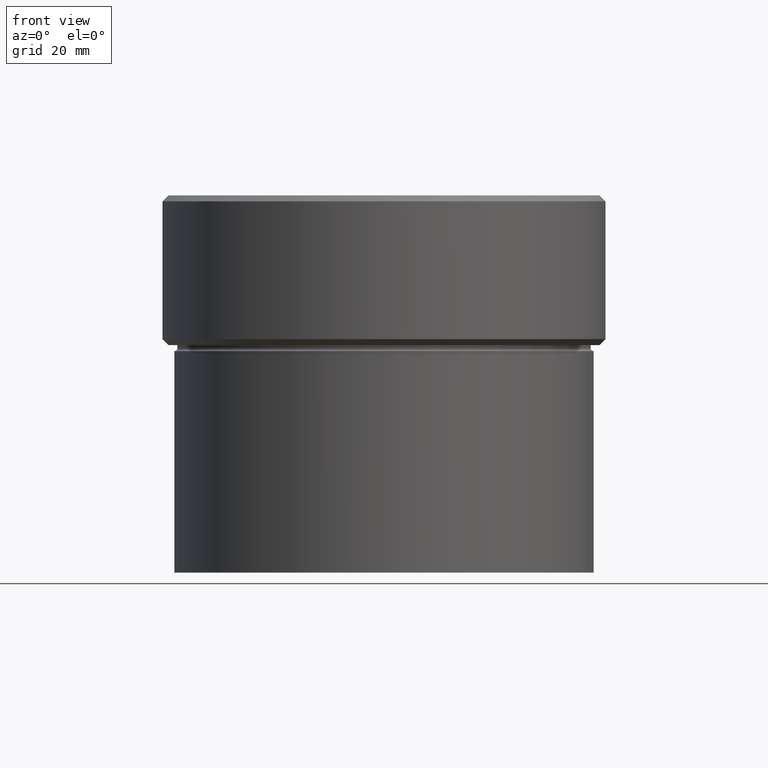
[diagram: clean part render]
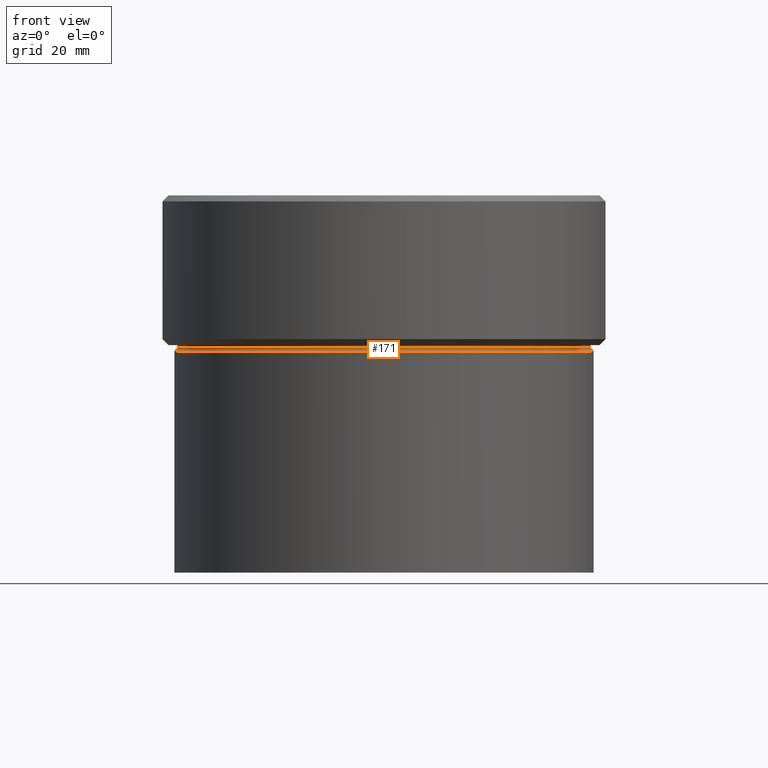
[diagram: same view with one face highlighted and labeled with its STEP entity id]
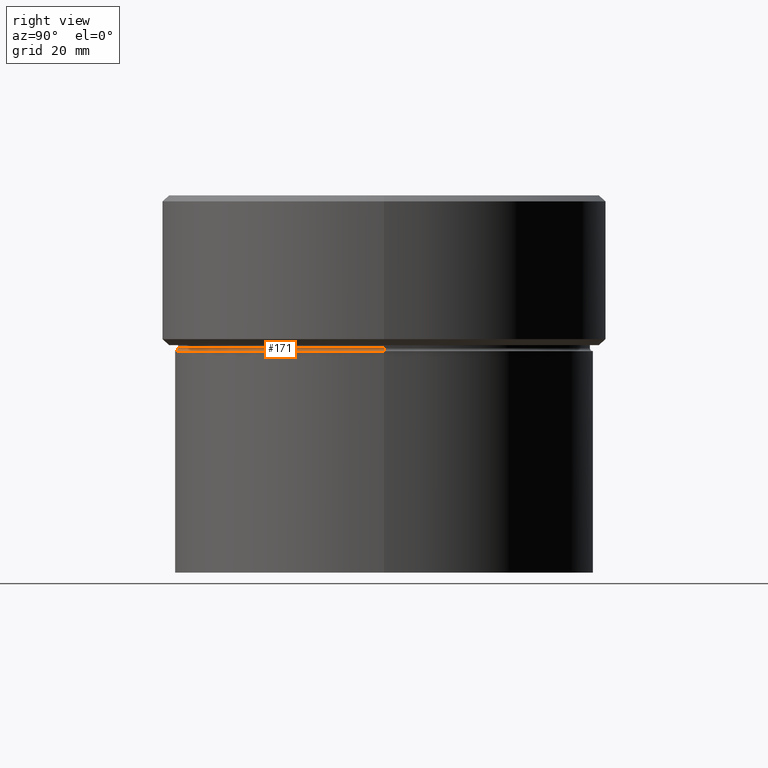
[diagram: same view with one face highlighted and labeled with its STEP entity id]
A machine part, front view. The second image highlights one B-rep face of the part: STEP entity #171.
A second angle (right view) of the same face is appended — the face is thin or edge-on in the first view.
In plain terms, the highlighted toroidal blend (fillet) surface has major radius 35 mm and minor (blend) radius 0.5 mm.
Its self-contained STEP definition (entity closure, byte-faithful):
#30 = AXIS2_PLACEMENT_3D ( 'NONE', #474, #237, #200 ) ;
#37 = CARTESIAN_POINT ( 'NONE',  ( 35.00000000000000000, 0.000000000000000000, -26.00000000000000000 ) ) ;
#75 = ORIENTED_EDGE ( 'NONE', *, *, #507, .T. ) ;
#77 = DIRECTION ( 'NONE',  ( 1.000000000000000000, 0.000000000000000000, 0.000000000000000000 ) ) ;
#81 = EDGE_CURVE ( 'NONE', #366, #393, #170, .T. ) ;
#121 = AXIS2_PLACEMENT_3D ( 'NONE', #448, #203, #77 ) ;
#133 = DIRECTION ( 'NONE',  ( -0.000000000000000000, -0.000000000000000000, 1.000000000000000000 ) ) ;
#136 = VERTEX_POINT ( 'NONE', #37 ) ;
#138 = DIRECTION ( 'NONE',  ( -0.000000000000000000, -0.000000000000000000, 1.000000000000000000 ) ) ;
#145 = VERTEX_POINT ( 'NONE', #524 ) ;
#162 = FACE_OUTER_BOUND ( 'NONE', #369, .T. ) ;
#170 = CIRCLE ( 'NONE', #30, 0.5000000000000004441 ) ;
#171 = ADVANCED_FACE ( 'NONE', ( #162 ), #364, .F. ) ;
#200 = DIRECTION ( 'NONE',  ( -1.000000000000000000, 1.224646799147349509E-16, 0.000000000000000000 ) ) ;
#203 = DIRECTION ( 'NONE',  ( -0.000000000000000000, -0.000000000000000000, 1.000000000000000000 ) ) ;
#216 = CIRCLE ( 'NONE', #514, 0.5000000000000004441 ) ;
#222 = ORIENTED_EDGE ( 'NONE', *, *, #302, .F. ) ;
#223 = CIRCLE ( 'NONE', #410, 34.50000000000000000 ) ;
#237 = DIRECTION ( 'NONE',  ( 1.224646799147353207E-16, 1.000000000000000000, 0.000000000000000000 ) ) ;
#270 = CARTESIAN_POINT ( 'NONE',  ( -34.50000000000000000, 4.225031457058368922E-15, -25.50000000000000000 ) ) ;
#294 = DIRECTION ( 'NONE',  ( 1.000000000000000000, 0.000000000000000000, 0.000000000000000000 ) ) ;
#302 = EDGE_CURVE ( 'NONE', #366, #145, #223, .T. ) ;
#351 = DIRECTION ( 'NONE',  ( 1.000000000000000000, 0.000000000000000000, 0.000000000000000000 ) ) ;
#361 = ORIENTED_EDGE ( 'NONE', *, *, #81, .T. ) ;
#364 = TOROIDAL_SURFACE ( 'NONE', #121, 35.00000000000000000, 0.5000000000000000000 ) ;
#365 = CIRCLE ( 'NONE', #443, 35.00000000000000000 ) ;
#366 = VERTEX_POINT ( 'NONE', #270 ) ;
#369 = EDGE_LOOP ( 'NONE', ( #222, #361, #75, #407 ) ) ;
#393 = VERTEX_POINT ( 'NONE', #406 ) ;
#406 = CARTESIAN_POINT ( 'NONE',  ( -35.00000000000000000, 4.286263797015736496E-15, -26.00000000000000000 ) ) ;
#407 = ORIENTED_EDGE ( 'NONE', *, *, #470, .F. ) ;
#410 = AXIS2_PLACEMENT_3D ( 'NONE', #427, #138, #351 ) ;
#419 = DIRECTION ( 'NONE',  ( 0.000000000000000000, 0.000000000000000000, -1.000000000000000000 ) ) ;
#427 = CARTESIAN_POINT ( 'NONE',  ( 0.000000000000000000, 0.000000000000000000, -25.50000000000000000 ) ) ;
#443 = AXIS2_PLACEMENT_3D ( 'NONE', #495, #133, #294 ) ;
#448 = CARTESIAN_POINT ( 'NONE',  ( 0.000000000000000000, 0.000000000000000000, -25.50000000000000000 ) ) ;
#470 = EDGE_CURVE ( 'NONE', #145, #136, #216, .T. ) ;
#474 = CARTESIAN_POINT ( 'NONE',  ( -35.00000000000000000, 4.286263797015736496E-15, -25.50000000000000000 ) ) ;
#495 = CARTESIAN_POINT ( 'NONE',  ( 0.000000000000000000, 0.000000000000000000, -26.00000000000000000 ) ) ;
#501 = DIRECTION ( 'NONE',  ( 0.000000000000000000, -1.000000000000000000, 0.000000000000000000 ) ) ;
#505 = CARTESIAN_POINT ( 'NONE',  ( 35.00000000000000000, 0.000000000000000000, -25.50000000000000000 ) ) ;
#507 = EDGE_CURVE ( 'NONE', #393, #136, #365, .T. ) ;
#514 = AXIS2_PLACEMENT_3D ( 'NONE', #505, #501, #419 ) ;
#524 = CARTESIAN_POINT ( 'NONE',  ( 34.50000000000000000, 0.000000000000000000, -25.50000000000000000 ) ) ;